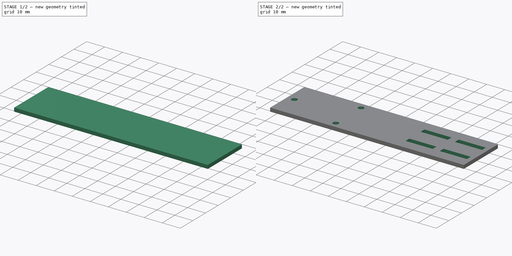
[diagram: build sequence overview — one tinted view per stage of 2, left to right]
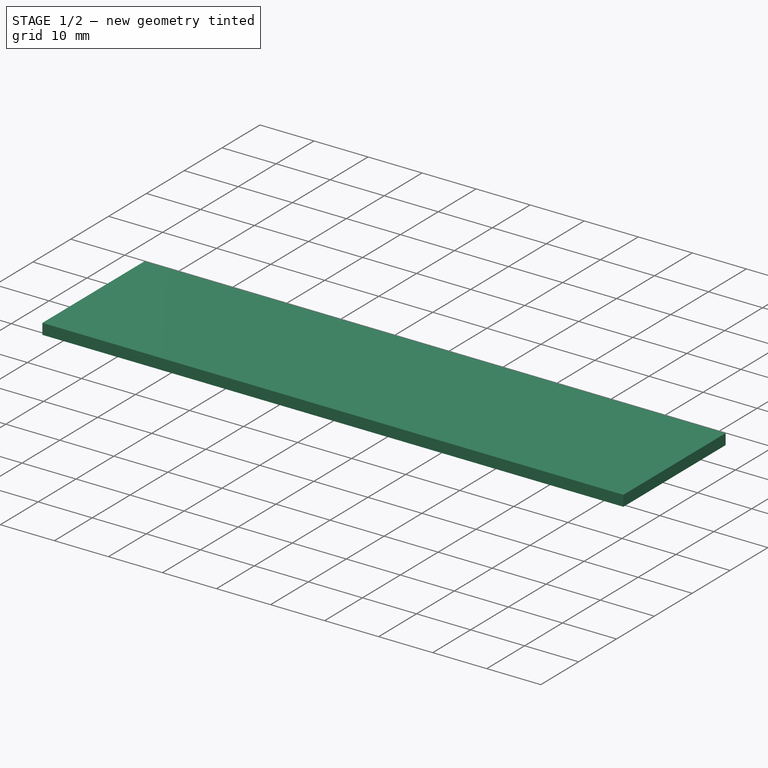
[diagram: stage 1 of 2 — iso view after this stage's code; geometry added in this stage tinted green]
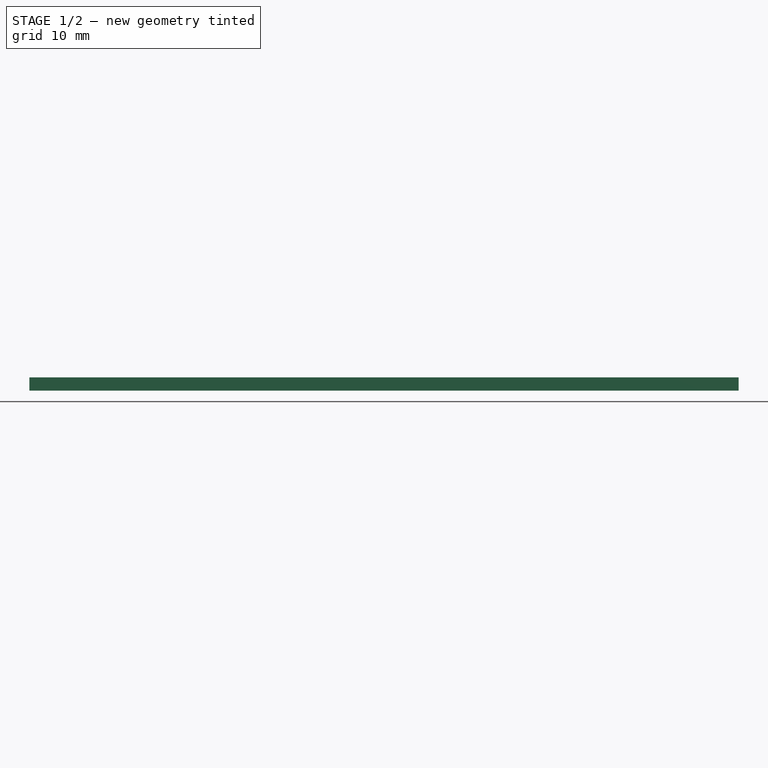
[diagram: stage 1 of 2 — front view after this stage's code; geometry added in this stage tinted green]
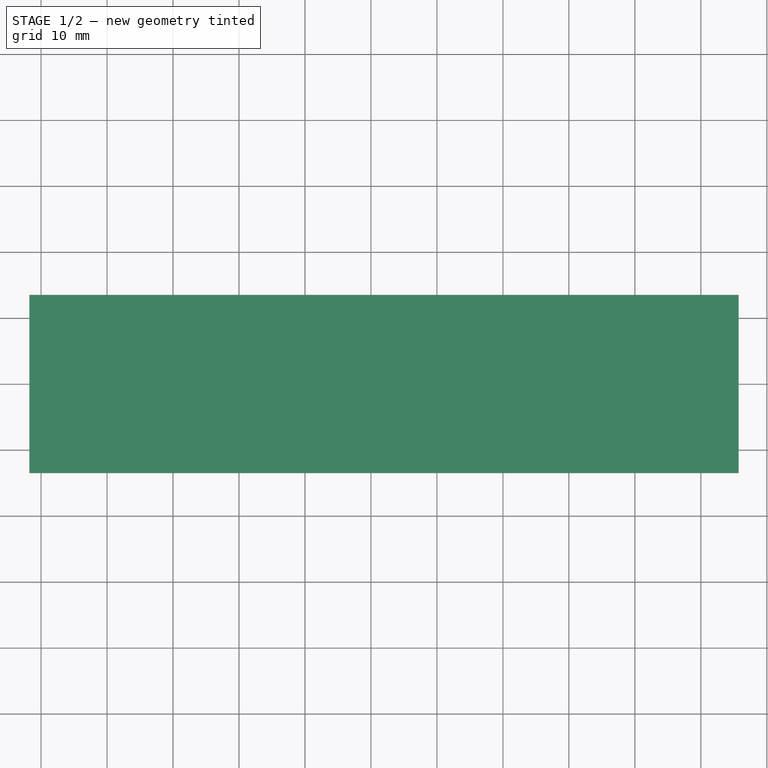
[diagram: stage 1 of 2 — top view after this stage's code; geometry added in this stage tinted green]
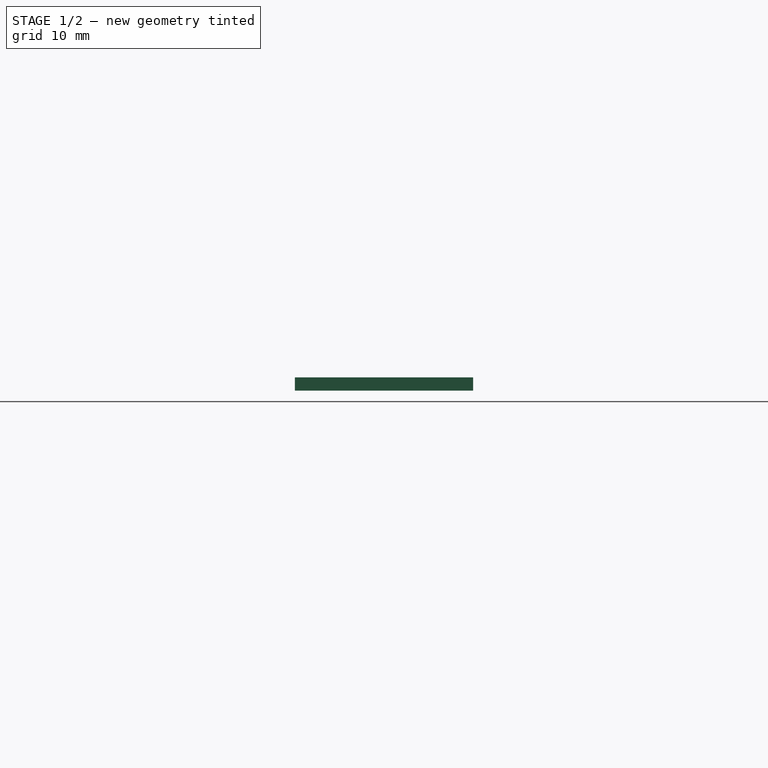
[diagram: stage 1 of 2 — right view after this stage's code; geometry added in this stage tinted green]
FCSTD DOCUMENT  (FreeCAD 0.16R)
Label: 31102020_encode_holder
License: All rights reserved
LicenseURL: http://en.wikipedia.org/wiki/All_rights_reserved
objects: Sketcher::SketchObject×2, PartDesign::Pad×1, PartDesign::Pocket×1
note: 6 computed .brp shape members not serialized (recipe doc carries the construction recipe); baked Part::Feature solids carry a one-line shape summary decoded from their .brp

FEATURE [Sketcher::SketchObject] Sketch
  sketch-geometry (4):
    g0: LineSegment StartX=-31.7739 StartY=13.5 StartZ=0 EndX=75.7261 EndY=13.5 EndZ=0
    g1: LineSegment StartX=75.7261 StartY=13.5 StartZ=0 EndX=75.7261 EndY=-13.5 EndZ=0
    g2: LineSegment StartX=75.7261 StartY=-13.5 StartZ=0 EndX=-31.7739 EndY=-13.5 EndZ=0
    g3: LineSegment StartX=-31.7739 StartY=-13.5 StartZ=0 EndX=-31.7739 EndY=13.5 EndZ=0
  constraints (11):
    c: Coincident(g0,g1)
    c: Coincident(g1,g2)
    c: Coincident(g2,g3)
    c: Coincident(g3,g0)
    c: Horizontal(g0)
    c: Horizontal(g2)
    c: Vertical(g1)
    c: Vertical(g3)
    c: DistanceY(g3,g3) = 27
    c: DistanceX(g0,g0) = 107.5
    c: Symmetric(g0,g2,g-1)
FEATURE [PartDesign::Pad] Pad
  Length = 2
  Length2 = 100
  Sketch = -> Sketch
  Type = 0
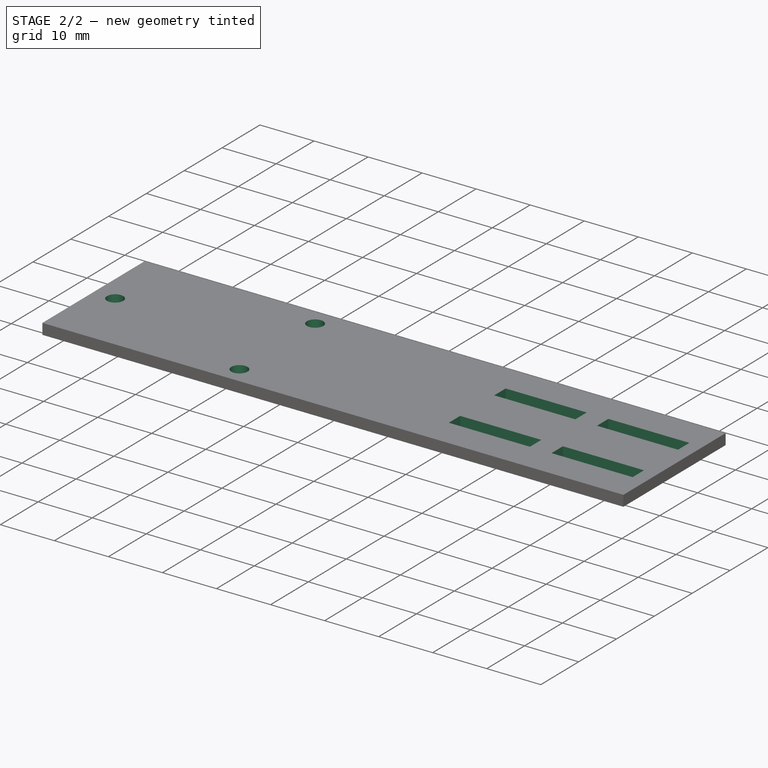
[diagram: stage 2 of 2 — iso view after this stage's code; geometry added in this stage tinted green]
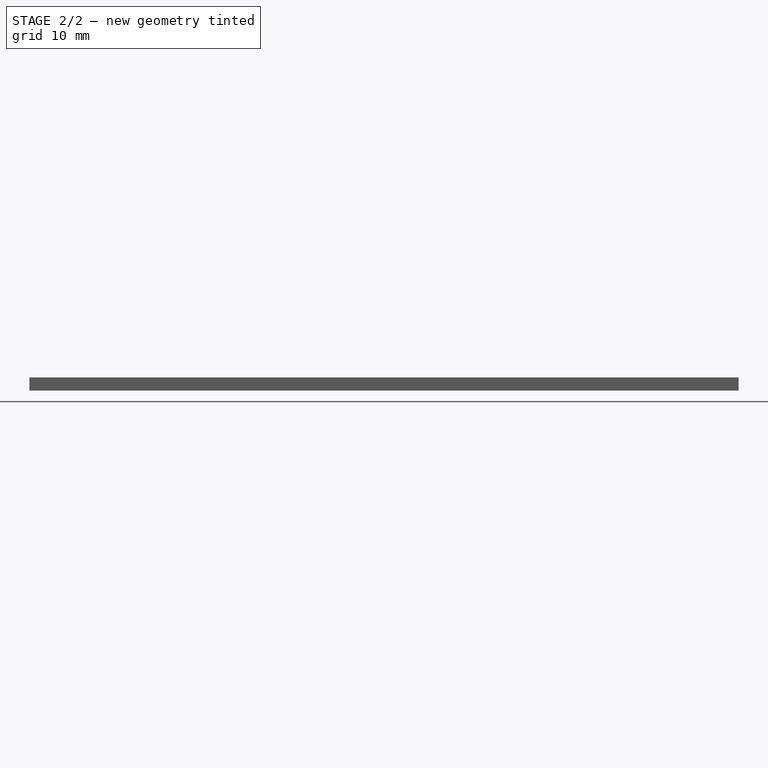
[diagram: stage 2 of 2 — front view after this stage's code; geometry added in this stage tinted green]
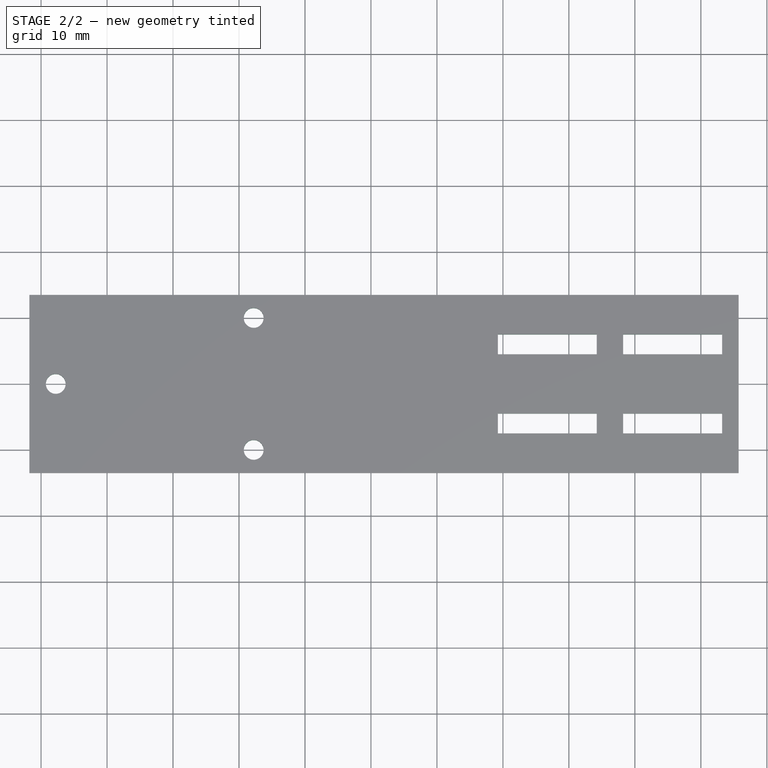
[diagram: stage 2 of 2 — top view after this stage's code; geometry added in this stage tinted green]
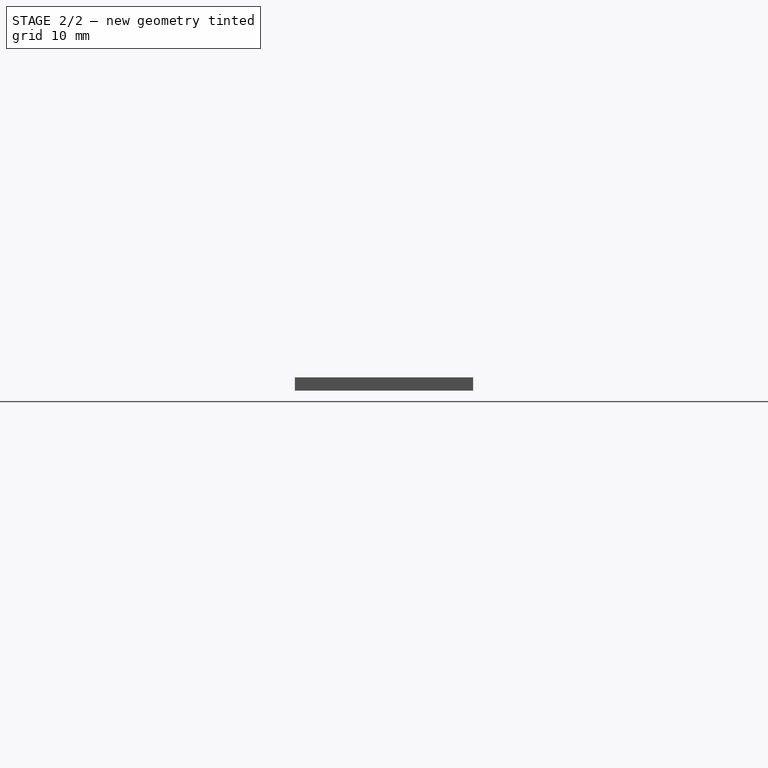
[diagram: stage 2 of 2 — right view after this stage's code; geometry added in this stage tinted green]
FEATURE [Sketcher::SketchObject] Sketch001
  ExternalGeometry = -> [Pad]
  Placement = pos=(0,0,2) rot=(0,0,1;0rad)
  Support = -> Pad [Face6]
  sketch-geometry (19):
    g0: Circle CenterX=-27.7739 CenterY=0 CenterZ=0 NormalX=0 NormalY=0 NormalZ=1 Radius=1.5
    g1: Circle CenterX=2.22612 CenterY=10 CenterZ=0 NormalX=0 NormalY=0 NormalZ=1 Radius=1.5
    g2: Circle CenterX=2.22612 CenterY=-10 CenterZ=0 NormalX=0 NormalY=0 NormalZ=1 Radius=1.5
    g3: LineSegment StartX=39.2261 StartY=7.25 StartZ=0 EndX=54.2261 EndY=7.25 EndZ=0
    g4: LineSegment StartX=54.2261 StartY=7.25 StartZ=0 EndX=54.2261 EndY=4.75 EndZ=0
    g5: LineSegment StartX=54.2261 StartY=4.75 StartZ=0 EndX=39.2261 EndY=4.75 EndZ=0
    g6: LineSegment StartX=39.2261 StartY=4.75 StartZ=0 EndX=39.2261 EndY=7.25 EndZ=0
    g7: LineSegment StartX=58.2261 StartY=7.25 StartZ=0 EndX=73.2261 EndY=7.25 EndZ=0
    g8: LineSegment StartX=73.2261 StartY=7.25 StartZ=0 EndX=73.2261 EndY=4.75 EndZ=0
    g9: LineSegment StartX=73.2261 StartY=4.75 StartZ=0 EndX=58.2261 EndY=4.75 EndZ=0
    g10: LineSegment StartX=58.2261 StartY=4.75 StartZ=0 EndX=58.2261 EndY=7.25 EndZ=0
    g11: LineSegment StartX=39.2261 StartY=-4.75 StartZ=0 EndX=54.2261 EndY=-4.75 EndZ=0
    g12: LineSegment StartX=54.2261 StartY=-4.75 StartZ=0 EndX=54.2261 EndY=-7.25 EndZ=0
    g13: LineSegment StartX=54.2261 StartY=-7.25 StartZ=0 EndX=39.2261 EndY=-7.25 EndZ=0
    g14: LineSegment StartX=39.2261 StartY=-7.25 StartZ=0 EndX=39.2261 EndY=-4.75 EndZ=0
    g15: LineSegment StartX=58.2261 StartY=-4.75 StartZ=0 EndX=73.2261 EndY=-4.75 EndZ=0
    g16: LineSegment StartX=73.2261 StartY=-4.75 StartZ=0 EndX=73.2261 EndY=-7.25 EndZ=0
    g17: LineSegment StartX=73.2261 StartY=-7.25 StartZ=0 EndX=58.2261 EndY=-7.25 EndZ=0
    g18: LineSegment StartX=58.2261 StartY=-7.25 StartZ=0 EndX=58.2261 EndY=-4.75 EndZ=0
  constraints (54):
    c: PointOnObject(g0,g-1)
    c: Radius(g0) = 1.5
    c: Equal(g0,g1)
    c: Equal(g0,g2)
    c: Symmetric(g1,g2,g-1)
    c: DistanceX(g-3,g0) = 4
    c: DistanceX(g0,g1) = 30
    c: DistanceY(g2,g1) = 20
    c: Coincident(g3,g4)
    c: Coincident(g4,g5)
    c: Coincident(g5,g6)
    c: Coincident(g6,g3)
    c: Horizontal(g3)
    c: Horizontal(g5)
    c: Vertical(g4)
    c: Vertical(g6)
    c: Coincident(g7,g8)
    c: Coincident(g8,g9)
    c: Coincident(g9,g10)
    c: Coincident(g10,g7)
    c: Horizontal(g7)
    c: Horizontal(g9)
    c: Vertical(g8)
    c: Vertical(g10)
    c: Coincident(g11,g12)
    c: Coincident(g12,g13)
    c: Coincident(g13,g14)
    c: Coincident(g14,g11)
    c: Horizontal(g11)
    c: Horizontal(g13)
    c: Vertical(g12)
    c: Vertical(g14)
    c: Coincident(g15,g16)
    c: Coincident(g16,g17)
    c: Coincident(g17,g18)
    c: Coincident(g18,g15)
    c: Horizontal(g15)
    c: Horizontal(g17)
    c: Vertical(g16)
    c: Vertical(g18)
    c: Equal(g15,g11)
    c: Equal(g11,g3)
    c: Equal(g3,g7)
    c: Equal(g18,g10)
    c: Equal(g10,g14)
    c: Equal(g14,g6)
    c: DistanceX(g3,g3) = 15
    c: DistanceY(g6,g6) = 2.5
    c: Symmetric(g5,g11,g-1)
    c: DistanceY(g11,g5) = 9.5
    c: Symmetric(g9,g15,g-1)
    c: DistanceX(g3,g7) = 4
    c: DistanceY(g15,g9) = 9.5
    c: DistanceX(g7,g-5) = 2.5
FEATURE [PartDesign::Pocket] Pocket
  Length = 5
  Sketch = -> Sketch001
  Type = 1
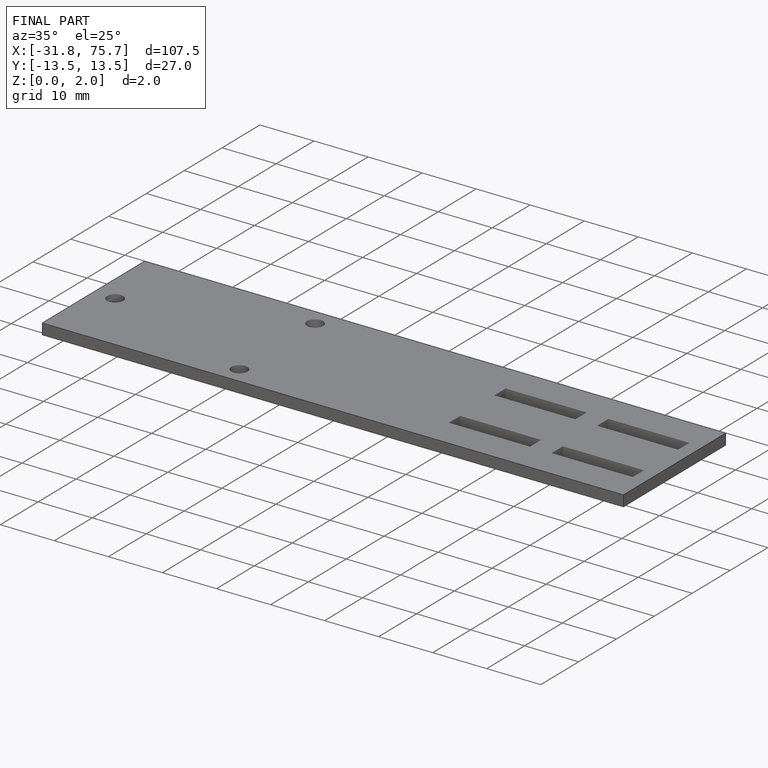
[diagram: finished part — iso view with bounding-box wireframe]
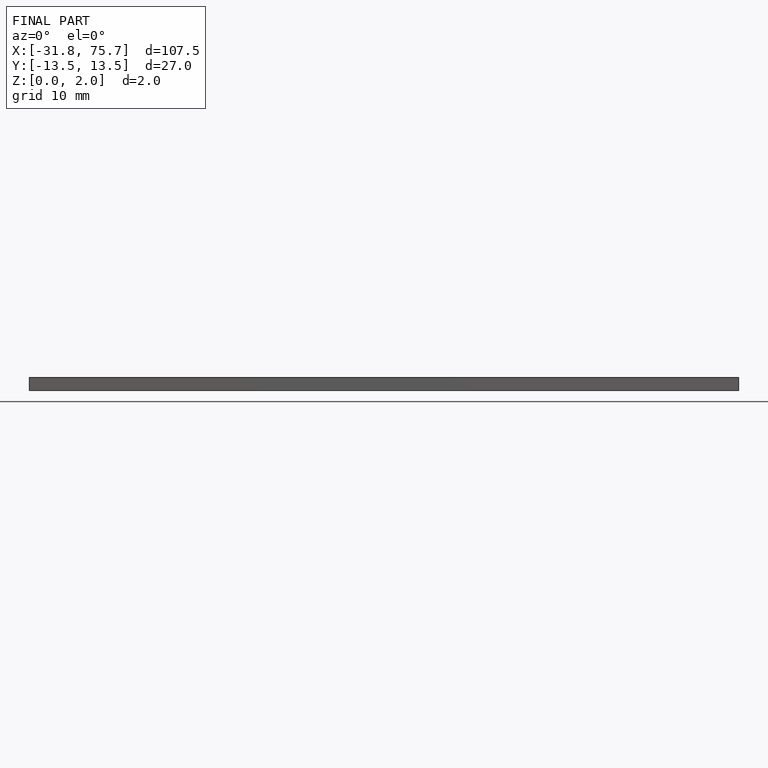
[diagram: finished part — front view with bounding-box wireframe]
